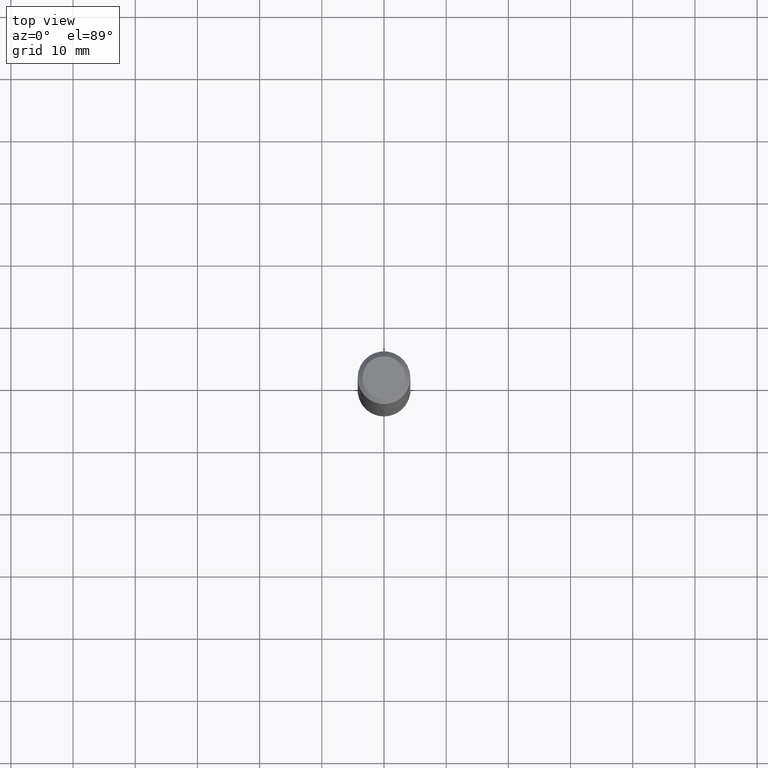
[diagram: clean part render]
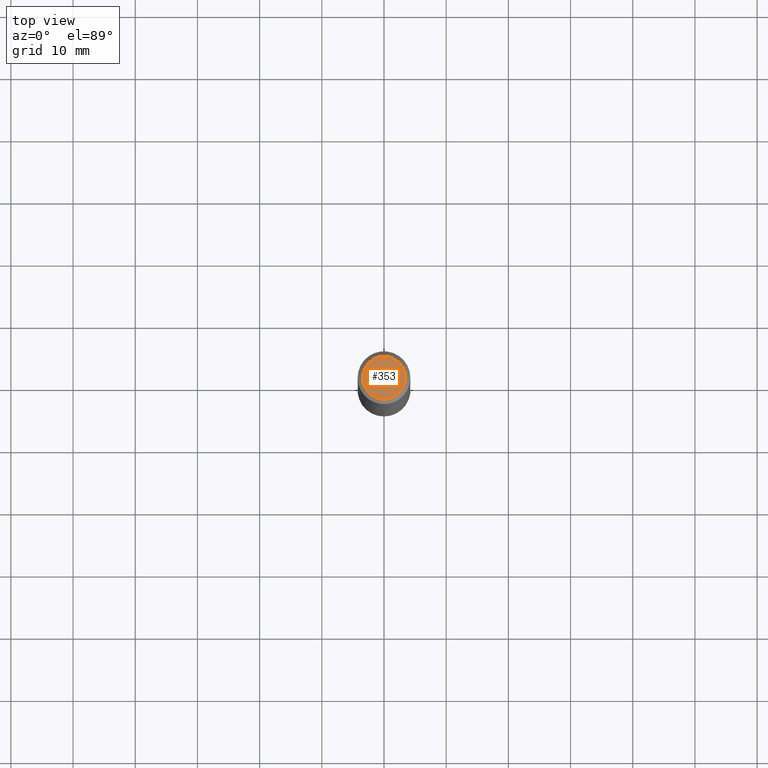
[diagram: same view with one face highlighted and labeled with its STEP entity id]
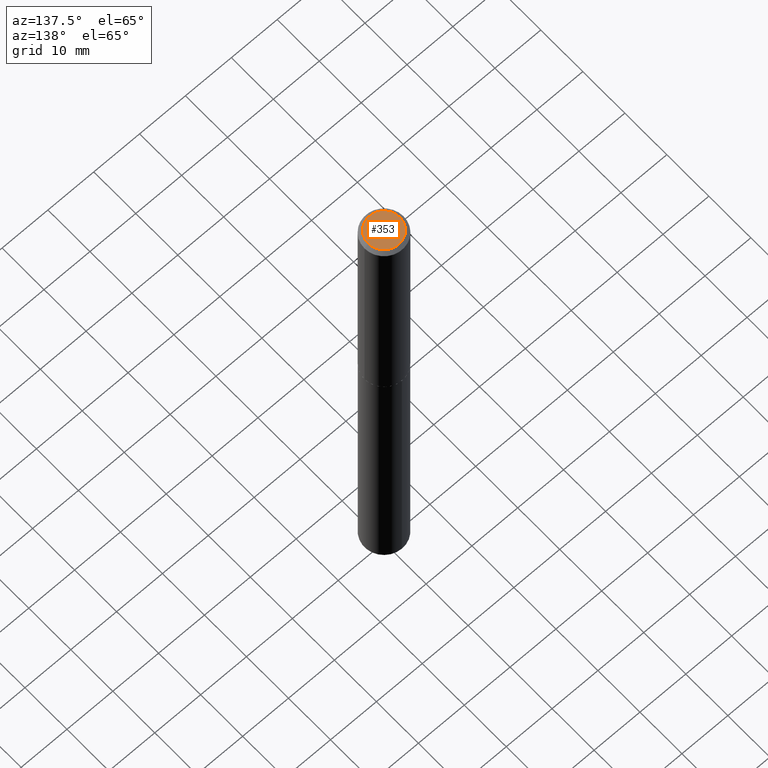
[diagram: same view with one face highlighted and labeled with its STEP entity id]
A machine part, top view. The second image highlights one B-rep face of the part: STEP entity #353.
A second angle (auxiliary view) of the same face is appended — the face is thin or edge-on in the first view.
In plain terms, the highlighted planar face has unit normal (0, -0, -1).
Its self-contained STEP definition (entity closure, byte-faithful):
#27 = PLANE ( 'NONE',  #69 ) ;
#36 = EDGE_CURVE ( 'NONE', #254, #277, #184, .T. ) ;
#37 = CIRCLE ( 'NONE', #235, 0.1360500000000000043 ) ;
#41 = EDGE_CURVE ( 'NONE', #277, #254, #37, .T. ) ;
#58 = CARTESIAN_POINT ( 'NONE',  ( 0.1360500000000000043, -1.095120429731421513E-15, 1.200153863171560703E-18 ) ) ;
#60 = CARTESIAN_POINT ( 'NONE',  ( -2.934938834991149230E-47, 4.190314816979047694E-33, 1.200153863164409918E-18 ) ) ;
#69 = AXIS2_PLACEMENT_3D ( 'NONE', #335, #211, #245 ) ;
#144 = DIRECTION ( 'NONE',  ( 1.000000000000000000, -6.982962677686267499E-15, 4.876242033288211584E-29 ) ) ;
#147 = FACE_OUTER_BOUND ( 'NONE', #221, .T. ) ;
#172 = DIRECTION ( 'NONE',  ( 1.000000000000000000, -6.982962677686267499E-15, 4.876242033288211584E-29 ) ) ;
#184 = CIRCLE ( 'NONE', #201, 0.1360500000000000043 ) ;
#201 = AXIS2_PLACEMENT_3D ( 'NONE', #248, #374, #172 ) ;
#202 = DIRECTION ( 'NONE',  ( -2.445468806185136597E-29, 3.491481338843145583E-15, 1.000000000000000000 ) ) ;
#211 = DIRECTION ( 'NONE',  ( 2.438088387897960049E-29, -3.491481338843145188E-15, -1.000000000000000000 ) ) ;
#221 = EDGE_LOOP ( 'NONE', ( #297, #341 ) ) ;
#235 = AXIS2_PLACEMENT_3D ( 'NONE', #60, #202, #144 ) ;
#245 = DIRECTION ( 'NONE',  ( -1.000000000000000000, 6.982962677686265922E-15, -4.876176775795935793E-29 ) ) ;
#248 = CARTESIAN_POINT ( 'NONE',  ( -2.934938834991149230E-47, 4.190314816979047694E-33, 1.200153863164409918E-18 ) ) ;
#254 = VERTEX_POINT ( 'NONE', #58 ) ;
#277 = VERTEX_POINT ( 'NONE', #383 ) ;
#297 = ORIENTED_EDGE ( 'NONE', *, *, #41, .T. ) ;
#335 = CARTESIAN_POINT ( 'NONE',  ( -1.467469417495574615E-47, 2.095157408489523847E-33, 6.000769315822049591E-19 ) ) ;
#341 = ORIENTED_EDGE ( 'NONE', *, *, #36, .T. ) ;
#353 = ADVANCED_FACE ( 'NONE', ( #147 ), #27, .F. ) ;
#374 = DIRECTION ( 'NONE',  ( -2.445468806185136597E-29, 3.491481338843145583E-15, 1.000000000000000000 ) ) ;
#383 = CARTESIAN_POINT ( 'NONE',  ( -0.1360500000000000043, 1.004586468218639925E-15, 1.200153863157575371E-18 ) ) ;